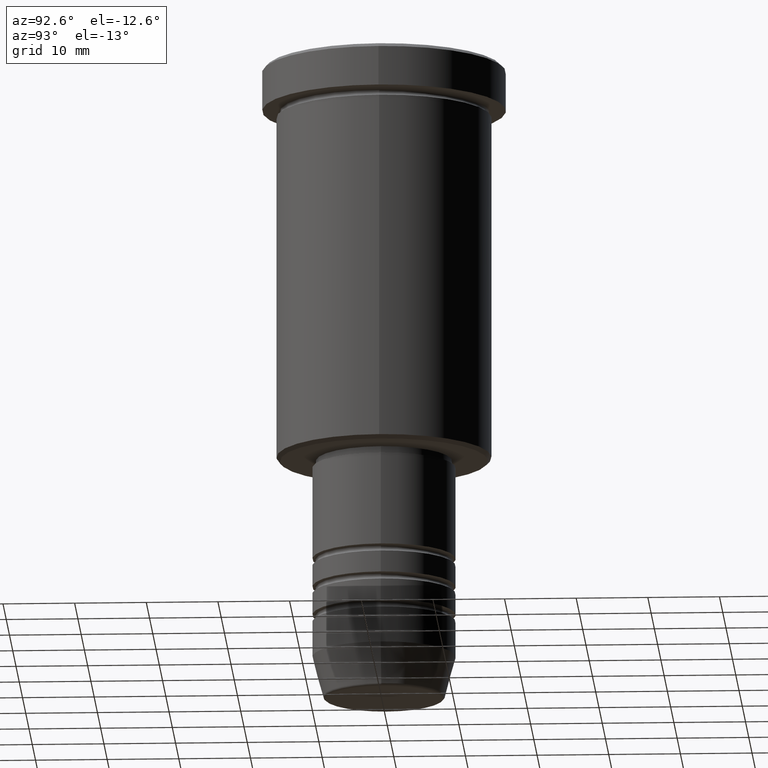
[diagram: clean part render]
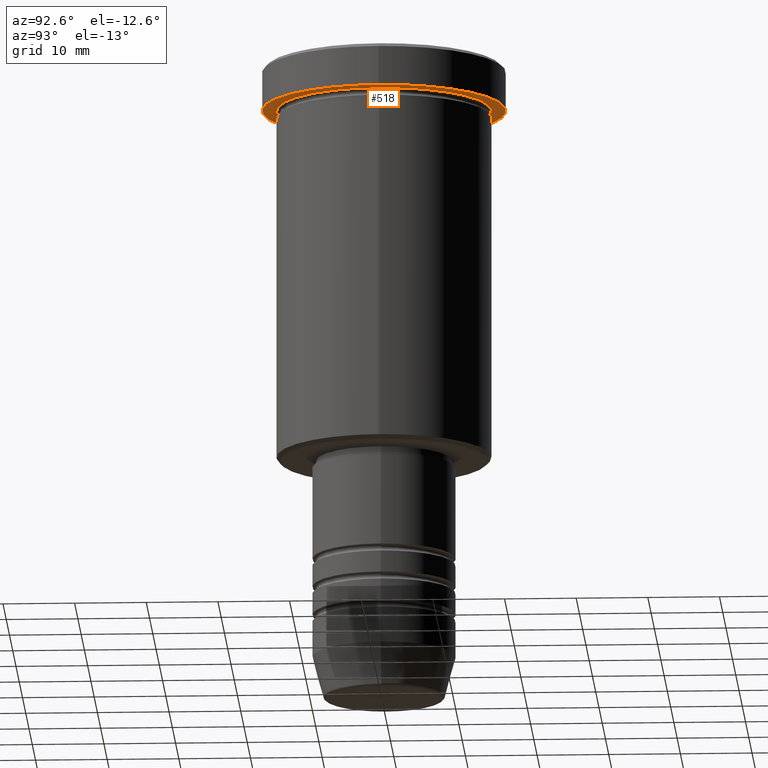
[diagram: same view with one face highlighted and labeled with its STEP entity id]
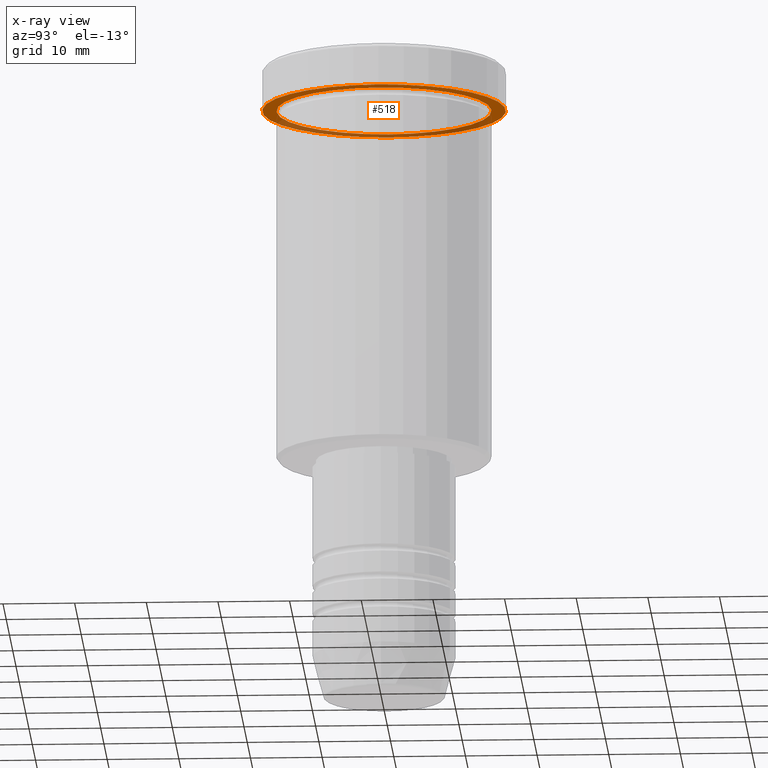
[diagram: x-ray of the same camera — body ghosted, the highlighted face saturated]
A machine part, auxiliary view. The second image highlights one B-rep face of the part: STEP entity #518.
The next image is the same camera in x-ray: the body ghosted, the highlighted face saturated — about 37% of this face is hidden behind the body in this view.
In plain terms, the highlighted planar face has unit normal (0, 0, -1).
Its self-contained STEP definition (entity closure, byte-faithful):
#58 = ORIENTED_EDGE ( 'NONE', *, *, #760, .T. ) ;
#59 = ORIENTED_EDGE ( 'NONE', *, *, #964, .T. ) ;
#61 = CARTESIAN_POINT ( 'NONE',  ( 0.000000000000000000, 0.000000000000000000, -5.999999999999994671 ) ) ;
#94 = EDGE_CURVE ( 'NONE', #441, #616, #207, .T. ) ;
#117 = DIRECTION ( 'NONE',  ( -1.000000000000000000, 0.000000000000000000, 0.000000000000000000 ) ) ;
#129 = CIRCLE ( 'NONE', #766, 17.00000000000000000 ) ;
#172 = CARTESIAN_POINT ( 'NONE',  ( 0.000000000000000000, 17.00000000000000000, -5.999999999999994671 ) ) ;
#200 = ORIENTED_EDGE ( 'NONE', *, *, #448, .F. ) ;
#207 = CIRCLE ( 'NONE', #515, 17.00000000000000000 ) ;
#309 = CARTESIAN_POINT ( 'NONE',  ( 15.00000000000000000, 1.836970198721029589E-15, -5.999999999999994671 ) ) ;
#317 = VERTEX_POINT ( 'NONE', #810 ) ;
#345 = CIRCLE ( 'NONE', #757, 15.00000000000000000 ) ;
#392 = CARTESIAN_POINT ( 'NONE',  ( 0.000000000000000000, 0.000000000000000000, -5.999999999999994671 ) ) ;
#428 = CARTESIAN_POINT ( 'NONE',  ( 0.000000000000000000, 0.000000000000000000, -5.999999999999994671 ) ) ;
#441 = VERTEX_POINT ( 'NONE', #552 ) ;
#446 = FACE_BOUND ( 'NONE', #780, .T. ) ;
#448 = EDGE_CURVE ( 'NONE', #616, #441, #129, .T. ) ;
#449 = ORIENTED_EDGE ( 'NONE', *, *, #94, .F. ) ;
#453 = DIRECTION ( 'NONE',  ( -1.000000000000000000, 0.000000000000000000, -0.000000000000000000 ) ) ;
#494 = CARTESIAN_POINT ( 'NONE',  ( -17.00000000000000000, 2.081899558550500280E-15, -5.999999999999994671 ) ) ;
#515 = AXIS2_PLACEMENT_3D ( 'NONE', #61, #732, #536 ) ;
#518 = ADVANCED_FACE ( 'NONE', ( #446, #726 ), #979, .T. ) ;
#536 = DIRECTION ( 'NONE',  ( 1.000000000000000000, 0.000000000000000000, 0.000000000000000000 ) ) ;
#552 = CARTESIAN_POINT ( 'NONE',  ( 17.00000000000000000, 0.000000000000000000, -5.999999999999994671 ) ) ;
#616 = VERTEX_POINT ( 'NONE', #494 ) ;
#635 = DIRECTION ( 'NONE',  ( -0.000000000000000000, -0.000000000000000000, 1.000000000000000000 ) ) ;
#726 = FACE_OUTER_BOUND ( 'NONE', #892, .T. ) ;
#732 = DIRECTION ( 'NONE',  ( -0.000000000000000000, -0.000000000000000000, 1.000000000000000000 ) ) ;
#752 = AXIS2_PLACEMENT_3D ( 'NONE', #172, #897, #453 ) ;
#757 = AXIS2_PLACEMENT_3D ( 'NONE', #392, #930, #117 ) ;
#760 = EDGE_CURVE ( 'NONE', #1146, #317, #890, .T. ) ;
#766 = AXIS2_PLACEMENT_3D ( 'NONE', #1089, #635, #990 ) ;
#780 = EDGE_LOOP ( 'NONE', ( #59, #58 ) ) ;
#788 = AXIS2_PLACEMENT_3D ( 'NONE', #428, #948, #799 ) ;
#799 = DIRECTION ( 'NONE',  ( -1.000000000000000000, 0.000000000000000000, 0.000000000000000000 ) ) ;
#810 = CARTESIAN_POINT ( 'NONE',  ( -15.00000000000000000, 0.000000000000000000, -5.999999999999994671 ) ) ;
#890 = CIRCLE ( 'NONE', #788, 15.00000000000000000 ) ;
#892 = EDGE_LOOP ( 'NONE', ( #449, #200 ) ) ;
#897 = DIRECTION ( 'NONE',  ( 0.000000000000000000, 0.000000000000000000, -1.000000000000000000 ) ) ;
#930 = DIRECTION ( 'NONE',  ( -0.000000000000000000, -0.000000000000000000, 1.000000000000000000 ) ) ;
#948 = DIRECTION ( 'NONE',  ( -0.000000000000000000, -0.000000000000000000, 1.000000000000000000 ) ) ;
#964 = EDGE_CURVE ( 'NONE', #317, #1146, #345, .T. ) ;
#979 = PLANE ( 'NONE',  #752 ) ;
#990 = DIRECTION ( 'NONE',  ( 1.000000000000000000, 0.000000000000000000, 0.000000000000000000 ) ) ;
#1089 = CARTESIAN_POINT ( 'NONE',  ( 0.000000000000000000, 0.000000000000000000, -5.999999999999994671 ) ) ;
#1146 = VERTEX_POINT ( 'NONE', #309 ) ;